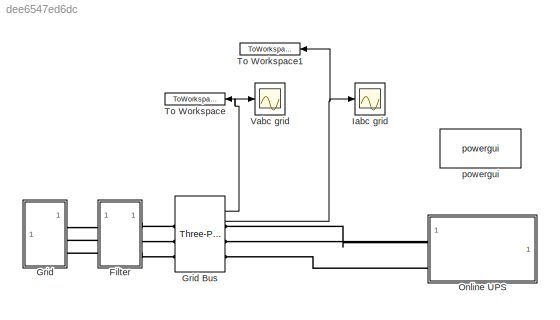
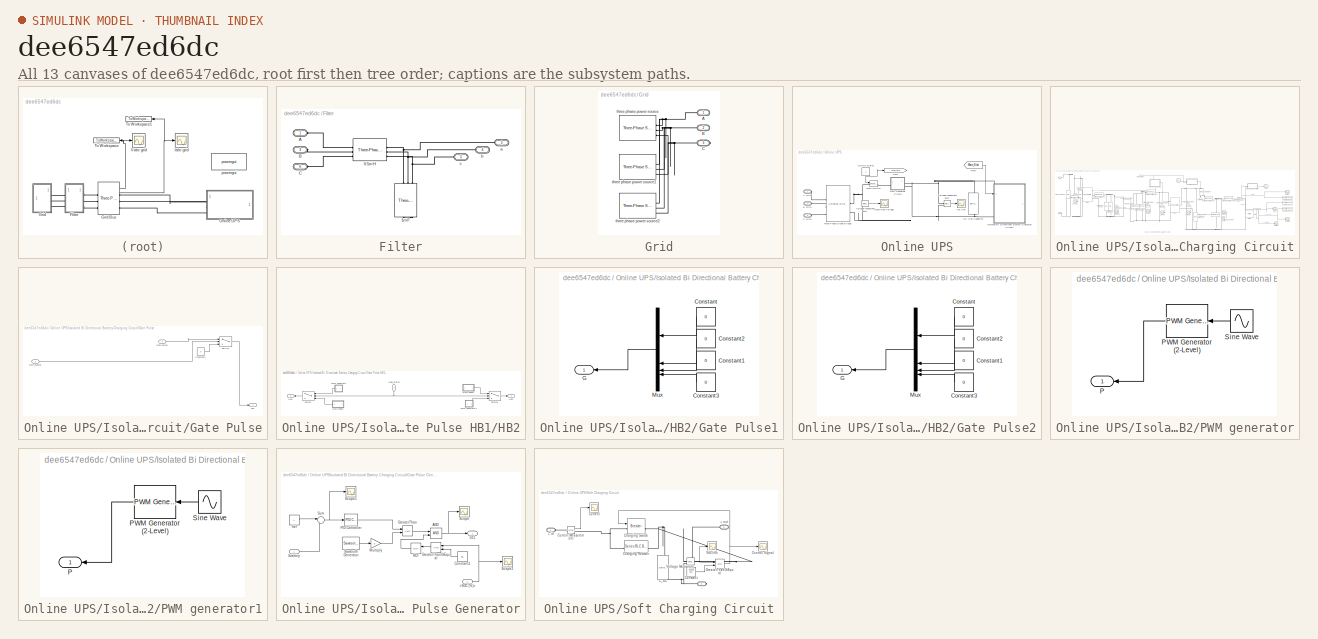
[diagram: thumbnail index - all 13 canvases of the model, root first then tree order]
MODEL slx_dee6547ed6dc
KIND model
CONFIG AbsTol = auto
CONFIG EnableMultiTasking = off
CONFIG FixedStep = auto
CONFIG MaxStep = auto
CONFIG MinStep = auto
CONFIG RelTol = 1e-3
CONFIG SampleTimeConstraint = Unconstrained
CONFIG SolverName = VariableStepAuto
CONFIG StartTime = 0.0
CONFIG StopTime = 60*3
BLOCK [SubSystem] Filter
BLOCK [Reference] Filter/0.5mH  REF=spsThreePhaseSeriesRLCBranchLib/Three-Phase
Series RLC Branch
  AttributesFormatString = \n
  SourceBlock = spsThreePhaseSeriesRLCBranchLib/Three-Phase\nSeries RLC Branch
  SourceType = Three-Phase Series RLC Branch
BLOCK [Reference] Filter/1mF  REF=spsThreePhaseSeriesRLCBranchLib/Three-Phase
Series RLC Branch
  AttributesFormatString = \n
  NameLocation = left
  SourceBlock = spsThreePhaseSeriesRLCBranchLib/Three-Phase\nSeries RLC Branch
  SourceType = Three-Phase Series RLC Branch
BLOCK [PMIOPort] Filter/A
  Side = Left
BLOCK [PMIOPort] Filter/B
  Port = 3
  Side = Left
BLOCK [PMIOPort] Filter/C
  Port = 6
  Side = Left
BLOCK [PMIOPort] Filter/a
  Port = 2
  Side = Right
BLOCK [PMIOPort] Filter/b
  Port = 4
  Side = Right
BLOCK [PMIOPort] Filter/c
  Port = 5
  Side = Right
BLOCK [SubSystem] Grid
BLOCK [Reference] Grid Bus  REF=spsThreePhaseVIMeasurementLib/Three-Phase
V-I Measurement
  LibrarySourceBlock = sps_lib/Sensors and Measurements/Three-Phase\nV-I Measurement
  SourceBlock = spsThreePhaseVIMeasurementLib/Three-Phase\nV-I Measurement
  SourceType = Three-Phase VI Measurement
BLOCK [PMIOPort] Grid/A
  Side = Right
BLOCK [PMIOPort] Grid/B
  Port = 2
  Side = Right
BLOCK [PMIOPort] Grid/C
  Port = 3
  Side = Right
BLOCK [Reference] Grid/three phase power source  REF=spsThreePhaseSourceLib/Three-Phase Source
  SourceBlock = spsThreePhaseSourceLib/Three-Phase Source
  SourceType = Three-Phase Source
BLOCK [Reference] Grid/three phase power source1  REF=spsThreePhaseSourceLib/Three-Phase Source
  SourceBlock = spsThreePhaseSourceLib/Three-Phase Source
  SourceType = Three-Phase Source
BLOCK [Reference] Grid/three phase power source2  REF=spsThreePhaseSourceLib/Three-Phase Source
  SourceBlock = spsThreePhaseSourceLib/Three-Phase Source
  SourceType = Three-Phase Source
BLOCK [Scope] Iabc grid
  Floating = off
  NumInputPorts = 1
  ScopeSpecificationString = Simulink.scopes.TimeScopeBlockCfg('CurrentConfiguration', extmgr.ConfigurationSet(extmgr.Configuration('Core','General UI',true),extmgr.Configuration('Core','Source UI',true),extmgr.Configuration('Sources','WiredSimulink',true,'DataLoggingVariableName','ScopeData1'),extmgr.Configuration('Visuals','Time Domain',true,'SerializedDisplays',{struct('MinYLimReal','-104.25754','MaxYLimReal','104.25524','...<+1619ch>
BLOCK [SubSystem] Online UPS
BLOCK [PMIOPort] Online UPS/A Grid
  Side = Left
BLOCK [PMIOPort] Online UPS/B Grid
  Port = 2
  Side = Left
BLOCK [PMIOPort] Online UPS/C Grid
  Port = 3
  Side = Left
BLOCK [Reference] Online UPS/DC Link Capacitor  REF=spsSeriesRLCBranchLib/Series RLC Branch
  NameLocation = top
  SourceBlock = spsSeriesRLCBranchLib/Series RLC Branch
  SourceType = Series RLC Branch
BLOCK [From] Online UPS/From
  GotoTag = Main_Stat
BLOCK [Goto] Online UPS/Goto
  GotoTag = Main_Stat
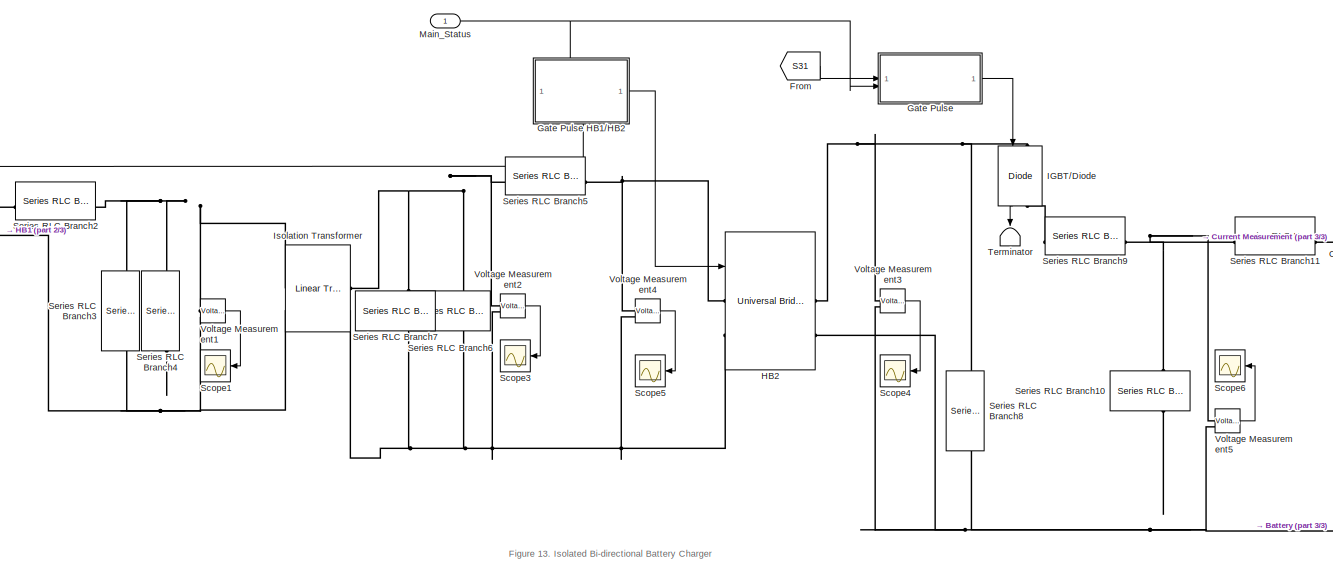
[diagram: Online UPS/Isolated Bi Directional Battery Charging Circuit - part 1/3, center side, full height]
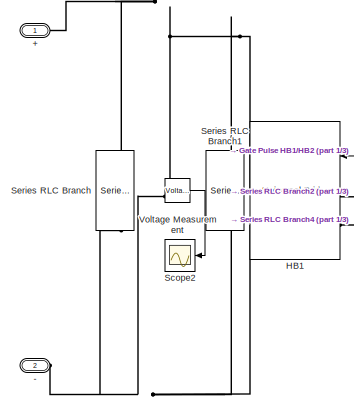
[diagram: Online UPS/Isolated Bi Directional Battery Charging Circuit - part 2/3, middle left region]
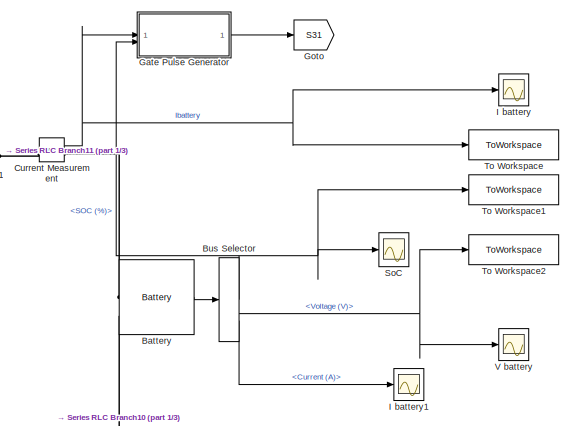
[diagram: Online UPS/Isolated Bi Directional Battery Charging Circuit - part 3/3, middle right region]
BLOCK [SubSystem] Online UPS/Isolated Bi Directional Battery Charging Circuit
BLOCK [PMIOPort] Online UPS/Isolated Bi Directional Battery Charging Circuit/+
  Side = Left
BLOCK [PMIOPort] Online UPS/Isolated Bi Directional Battery Charging Circuit/-
  Port = 2
  Side = Left
BLOCK [Reference] Online UPS/Isolated Bi Directional Battery Charging Circuit/Battery  REF=spsBatteryLib/Battery
  SourceBlock = spsBatteryLib/Battery
  SourceType = Battery
BLOCK [BusSelector] Online UPS/Isolated Bi Directional Battery Charging Circuit/Bus Selector
  OutputSignals = SOC (%),Voltage (V),Current (A)
BLOCK [Reference] Online UPS/Isolated Bi Directional Battery Charging Circuit/Current Measurement  REF=spsCurrentMeasurementLib/Current Measurement
  SourceBlock = spsCurrentMeasurementLib/Current Measurement
  SourceType = Current Measurement
  UserDataPersistent = on
BLOCK [From] Online UPS/Isolated Bi Directional Battery Charging Circuit/From
  GotoTag = S31
BLOCK [SubSystem] Online UPS/Isolated Bi Directional Battery Charging Circuit/Gate Pulse
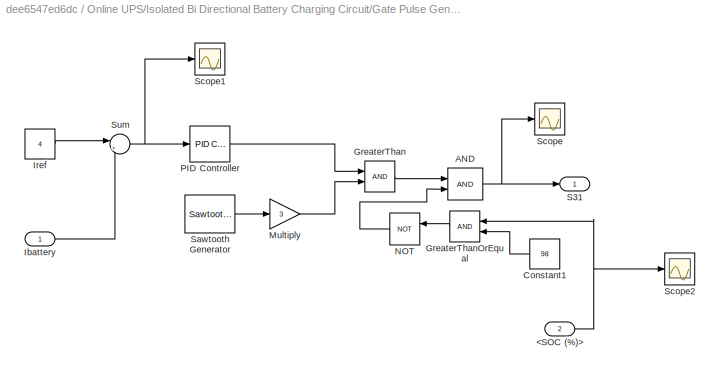
BLOCK [SubSystem] Online UPS/Isolated Bi Directional Battery Charging Circuit/Gate Pulse Generator
BLOCK [Inport] Online UPS/Isolated Bi Directional Battery Charging Circuit/Gate Pulse Generator/<SOC (%)>
  Port = 2
BLOCK [Logic] Online UPS/Isolated Bi Directional Battery Charging Circuit/Gate Pulse Generator/AND
  AllPortsSameDT = off
  IconShape = distinctive
  OutDataTypeStr = boolean
BLOCK [Constant] Online UPS/Isolated Bi Directional Battery Charging Circuit/Gate Pulse Generator/Constant1
  Value = 98
BLOCK [RelationalOperator] Online UPS/Isolated Bi Directional Battery Charging Circuit/Gate Pulse Generator/GreaterThan
  InputSameDT = off
  OutDataTypeStr = boolean
  RndMeth = Simplest
BLOCK [RelationalOperator] Online UPS/Isolated Bi Directional Battery Charging Circuit/Gate Pulse Generator/GreaterThanOrEqual
  InputSameDT = off
  OutDataTypeStr = boolean
  RndMeth = Simplest
BLOCK [Inport] Online UPS/Isolated Bi Directional Battery Charging Circuit/Gate Pulse Generator/Ibattery
BLOCK [Constant] Online UPS/Isolated Bi Directional Battery Charging Circuit/Gate Pulse Generator/Iref
  Value = 4
BLOCK [Gain] Online UPS/Isolated Bi Directional Battery Charging Circuit/Gate Pulse Generator/Multiply
  Gain = 3
BLOCK [Logic] Online UPS/Isolated Bi Directional Battery Charging Circuit/Gate Pulse Generator/NOT
  AllPortsSameDT = off
  IconShape = distinctive
  Operator = NOT
  OutDataTypeStr = boolean
BLOCK [Reference] Online UPS/Isolated Bi Directional Battery Charging Circuit/Gate Pulse Generator/PID Controller  REF=slpidlib/PID Controller
  SourceBlock = slpidlib/PID Controller
  SourceType = PID 1dof
BLOCK [Outport] Online UPS/Isolated Bi Directional Battery Charging Circuit/Gate Pulse Generator/S31
BLOCK [Reference] Online UPS/Isolated Bi Directional Battery Charging Circuit/Gate Pulse Generator/Sawtooth Generator  REF=spsSawtoothGeneratorLib/Sawtooth
Generator
  SourceBlock = spsSawtoothGeneratorLib/Sawtooth\nGenerator
  SourceType = Sawtooth Generator
BLOCK [Scope] Online UPS/Isolated Bi Directional Battery Charging Circuit/Gate Pulse Generator/Scope
  Floating = off
  NumInputPorts = 1
  ScopeSpecificationString = Simulink.scopes.TimeScopeBlockCfg('CurrentConfiguration', extmgr.ConfigurationSet(extmgr.Configuration('Core','General UI',true),extmgr.Configuration('Core','Source UI',true),extmgr.Configuration('Sources','WiredSimulink',true,'DataLoggingVariableName','ScopeData9'),extmgr.Configuration('Visuals','Time Domain',true,'SerializedDisplays',{struct('MinYLimReal','-0.125','MaxYLimReal','1.125','YLabelRe...<+1539ch>
BLOCK [Scope] Online UPS/Isolated Bi Directional Battery Charging Circuit/Gate Pulse Generator/Scope1
  Floating = off
  NumInputPorts = 1
  ScopeSpecificationString = Simulink.scopes.TimeScopeBlockCfg('CurrentConfiguration', extmgr.ConfigurationSet(extmgr.Configuration('Core','General UI',true),extmgr.Configuration('Core','Source UI',true),extmgr.Configuration('Sources','WiredSimulink',true,'DataLoggingVariableName','ScopeData11'),extmgr.Configuration('Visuals','Time Domain',true,'SerializedDisplays',{struct('MinYLimReal','-0.99606','MaxYLimReal','6.87452','YLa...<+1552ch>
BLOCK [Scope] Online UPS/Isolated Bi Directional Battery Charging Circuit/Gate Pulse Generator/Scope2
  Floating = off
  NumInputPorts = 1
  ScopeSpecificationString = Simulink.scopes.TimeScopeBlockCfg('CurrentConfiguration', extmgr.ConfigurationSet(extmgr.Configuration('Core','General UI',true),extmgr.Configuration('Core','Source UI',true),extmgr.Configuration('Sources','WiredSimulink',true,'DataLoggingVariableName','ScopeData12'),extmgr.Configuration('Visuals','Time Domain',true,'SerializedDisplays',{struct('MinYLimReal','26.93694','MaxYLimReal','46.93694','YL...<+1564ch>
BLOCK [Sum] Online UPS/Isolated Bi Directional Battery Charging Circuit/Gate Pulse Generator/Sum
  Inputs = |+-
BLOCK [SubSystem] Online UPS/Isolated Bi Directional Battery Charging Circuit/Gate Pulse HB1//HB2
  PortSchema = {"entries":[{"content":{"sides":[{"content":{"connectorIds":["Out2"]},"type":"ConnectorPlacement.EquallySpacedRectSide","uuid":"1234e2fb-321d-4fcf-8e53-b8d56895d88c"},{"content":{"connectorIds":["Out1"],"side":"RIGHT"},"type":"ConnectorPlacement.EquallySpacedRectSide","uuid":"c3f79607-e652-4b89-92d0-d6f199718302"},{"content":{"connectorIds":["In1"],"side":"TOP"},"type":"ConnectorPlacement.EquallyS...<+246ch>
BLOCK [SubSystem] Online UPS/Isolated Bi Directional Battery Charging Circuit/Gate Pulse HB1//HB2/Gate Pulse1
BLOCK [Constant] Online UPS/Isolated Bi Directional Battery Charging Circuit/Gate Pulse HB1//HB2/Gate Pulse1/Constant
  Value = 0
BLOCK [Constant] Online UPS/Isolated Bi Directional Battery Charging Circuit/Gate Pulse HB1//HB2/Gate Pulse1/Constant1
  Value = 0
BLOCK [Constant] Online UPS/Isolated Bi Directional Battery Charging Circuit/Gate Pulse HB1//HB2/Gate Pulse1/Constant2
  Value = 0
BLOCK [Constant] Online UPS/Isolated Bi Directional Battery Charging Circuit/Gate Pulse HB1//HB2/Gate Pulse1/Constant3
  Value = 0
BLOCK [Outport] Online UPS/Isolated Bi Directional Battery Charging Circuit/Gate Pulse HB1//HB2/Gate Pulse1/G
BLOCK [Mux] Online UPS/Isolated Bi Directional Battery Charging Circuit/Gate Pulse HB1//HB2/Gate Pulse1/Mux
  DisplayOption = bar
BLOCK [SubSystem] Online UPS/Isolated Bi Directional Battery Charging Circuit/Gate Pulse HB1//HB2/Gate Pulse2
BLOCK [Constant] Online UPS/Isolated Bi Directional Battery Charging Circuit/Gate Pulse HB1//HB2/Gate Pulse2/Constant
  Value = 0
BLOCK [Constant] Online UPS/Isolated Bi Directional Battery Charging Circuit/Gate Pulse HB1//HB2/Gate Pulse2/Constant1
  Value = 0
BLOCK [Constant] Online UPS/Isolated Bi Directional Battery Charging Circuit/Gate Pulse HB1//HB2/Gate Pulse2/Constant2
  Value = 0
BLOCK [Constant] Online UPS/Isolated Bi Directional Battery Charging Circuit/Gate Pulse HB1//HB2/Gate Pulse2/Constant3
  Value = 0
BLOCK [Outport] Online UPS/Isolated Bi Directional Battery Charging Circuit/Gate Pulse HB1//HB2/Gate Pulse2/G
BLOCK [Mux] Online UPS/Isolated Bi Directional Battery Charging Circuit/Gate Pulse HB1//HB2/Gate Pulse2/Mux
  DisplayOption = bar
BLOCK [Outport] Online UPS/Isolated Bi Directional Battery Charging Circuit/Gate Pulse HB1//HB2/HB1
  Port = 2
BLOCK [Outport] Online UPS/Isolated Bi Directional Battery Charging Circuit/Gate Pulse HB1//HB2/HB2
BLOCK [Inport] Online UPS/Isolated Bi Directional Battery Charging Circuit/Gate Pulse HB1//HB2/Main_Status
  NameLocation = right
BLOCK [SubSystem] Online UPS/Isolated Bi Directional Battery Charging Circuit/Gate Pulse HB1//HB2/PWM generator
  PortSchema = {"entries":[{"content":{"sides":[{"content":{"connectorIds":["Out1"]},"type":"ConnectorPlacement.EquallySpacedRectSide","uuid":"807d608c-be67-4f89-a244-8e5044f7f1fa"},{"content":{"side":"RIGHT"},"type":"ConnectorPlacement.EquallySpacedRectSide","uuid":"ae9c9264-81d1-4b5c-861e-635da60d63e0"},{"content":{"side":"TOP"},"type":"ConnectorPlacement.EquallySpacedRectSide","uuid":"146f21cb-b82e-455a-b0a2-...<+199ch>
BLOCK [Outport] Online UPS/Isolated Bi Directional Battery Charging Circuit/Gate Pulse HB1//HB2/PWM generator/P
BLOCK [Reference] Online UPS/Isolated Bi Directional Battery Charging Circuit/Gate Pulse HB1//HB2/PWM generator/PWM Generator (2-Level)  REF=spsPWMGenerator2LevelLib/PWM Generator
(2-Level)
  SourceBlock = spsPWMGenerator2LevelLib/PWM Generator\n(2-Level)
  SourceType = PWM Generator (2-Level)
BLOCK [Sin] Online UPS/Isolated Bi Directional Battery Charging Circuit/Gate Pulse HB1//HB2/PWM generator/Sine Wave
  Frequency = 2*pi*50
  SampleTime = 0
BLOCK [SubSystem] Online UPS/Isolated Bi Directional Battery Charging Circuit/Gate Pulse HB1//HB2/PWM generator1
  PortSchema = {"entries":[{"content":{"sides":[{"content":{"connectorIds":["Out1"]},"type":"ConnectorPlacement.EquallySpacedRectSide","uuid":"807d608c-be67-4f89-a244-8e5044f7f1fa"},{"content":{"side":"RIGHT"},"type":"ConnectorPlacement.EquallySpacedRectSide","uuid":"ae9c9264-81d1-4b5c-861e-635da60d63e0"},{"content":{"side":"TOP"},"type":"ConnectorPlacement.EquallySpacedRectSide","uuid":"146f21cb-b82e-455a-b0a2-...<+199ch>
BLOCK [Outport] Online UPS/Isolated Bi Directional Battery Charging Circuit/Gate Pulse HB1//HB2/PWM generator1/P
BLOCK [Reference] Online UPS/Isolated Bi Directional Battery Charging Circuit/Gate Pulse HB1//HB2/PWM generator1/PWM Generator (2-Level)  REF=spsPWMGenerator2LevelLib/PWM Generator
(2-Level)
  SourceBlock = spsPWMGenerator2LevelLib/PWM Generator\n(2-Level)
  SourceType = PWM Generator (2-Level)
BLOCK [Sin] Online UPS/Isolated Bi Directional Battery Charging Circuit/Gate Pulse HB1//HB2/PWM generator1/Sine Wave
  Frequency = 2*pi*50
  SampleTime = 0
BLOCK [Switch] Online UPS/Isolated Bi Directional Battery Charging Circuit/Gate Pulse HB1//HB2/Switch
  Criteria = u2 > Threshold
  InputSameDT = off
  SaturateOnIntegerOverflow = off
BLOCK [Switch] Online UPS/Isolated Bi Directional Battery Charging Circuit/Gate Pulse HB1//HB2/Switch1
  Criteria = u2 > Threshold
  InputSameDT = off
  SaturateOnIntegerOverflow = off
BLOCK [Constant] Online UPS/Isolated Bi Directional Battery Charging Circuit/Gate Pulse/Constant2
  Value = 0
BLOCK [Inport] Online UPS/Isolated Bi Directional Battery Charging Circuit/Gate Pulse/Gate Pulse
BLOCK [Inport] Online UPS/Isolated Bi Directional Battery Charging Circuit/Gate Pulse/Main_Status
  Port = 2
BLOCK [Outport] Online UPS/Isolated Bi Directional Battery Charging Circuit/Gate Pulse/S31
BLOCK [Switch] Online UPS/Isolated Bi Directional Battery Charging Circuit/Gate Pulse/Switch
  Criteria = u2 > Threshold
  InputSameDT = off
  SaturateOnIntegerOverflow = off
BLOCK [Goto] Online UPS/Isolated Bi Directional Battery Charging Circuit/Goto
  GotoTag = S31
BLOCK [Reference] Online UPS/Isolated Bi Directional Battery Charging Circuit/HB1  REF=spsUniversalBridgeLib/Universal Bridge
  SourceBlock = spsUniversalBridgeLib/Universal Bridge
  SourceType = Universal Bridge
BLOCK [Reference] Online UPS/Isolated Bi Directional Battery Charging Circuit/HB2  REF=spsUniversalBridgeLib/Universal Bridge
  SourceBlock = spsUniversalBridgeLib/Universal Bridge
  SourceType = Universal Bridge
BLOCK [Scope] Online UPS/Isolated Bi Directional Battery Charging Circuit/I battery
  Floating = off
  NumInputPorts = 1
  ScopeSpecificationString = Simulink.scopes.TimeScopeBlockCfg('CurrentConfiguration', extmgr.ConfigurationSet(extmgr.Configuration('Core','General UI',true),extmgr.Configuration('Core','Source UI',true),extmgr.Configuration('Sources','WiredSimulink',true,'DataLoggingVariableName','ScopeData7'),extmgr.Configuration('Visuals','Time Domain',true,'SerializedDisplays',{struct('MinYLimReal','-7.96991','MaxYLimReal','3.3106','YLabe...<+1554ch>
BLOCK [Scope] Online UPS/Isolated Bi Directional Battery Charging Circuit/I battery1
  Floating = off
  NumInputPorts = 1
  ScopeSpecificationString = Simulink.scopes.TimeScopeBlockCfg('CurrentConfiguration', extmgr.ConfigurationSet(extmgr.Configuration('Core','General UI',true),extmgr.Configuration('Core','Source UI',true),extmgr.Configuration('Sources','WiredSimulink',true,'DataLoggingVariableName','ScopeData13'),extmgr.Configuration('Visuals','Time Domain',true,'SerializedDisplays',{struct('MinYLimReal','-3.28611','MaxYLimReal','7.96719','YLa...<+1562ch>
BLOCK [Reference] Online UPS/Isolated Bi Directional Battery Charging Circuit/IGBT//Diode  REF=spsIGBTDiodeLib/IGBT//Diode
  NameLocation = left
  SourceBlock = spsIGBTDiodeLib/IGBT//Diode
  SourceType = IGBT/Diode
BLOCK [Reference] Online UPS/Isolated Bi Directional Battery Charging Circuit/Isolation Transformer  REF=spsLinearTransformerLib/Linear Transformer
  SourceBlock = spsLinearTransformerLib/Linear Transformer
  SourceType = Linear Transformer
BLOCK [Inport] Online UPS/Isolated Bi Directional Battery Charging Circuit/Main_Status
BLOCK [Scope] Online UPS/Isolated Bi Directional Battery Charging Circuit/Scope1
  Floating = off
  NameLocation = top
  NumInputPorts = 1
  ScopeSpecificationString = Simulink.scopes.TimeScopeBlockCfg('CurrentConfiguration', extmgr.ConfigurationSet(extmgr.Configuration('Core','General UI',true),extmgr.Configuration('Core','Source UI',true),extmgr.Configuration('Sources','WiredSimulink',true,'DataLoggingVariableName','ScopeData1'),extmgr.Configuration('Visuals','Time Domain',true,'SerializedDisplays',{struct('MinYLimReal','-3.54149','MaxYLimReal','3.53975','YLab...<+1568ch>
BLOCK [Scope] Online UPS/Isolated Bi Directional Battery Charging Circuit/Scope2
  Floating = off
  NameLocation = top
  NumInputPorts = 1
  ScopeSpecificationString = Simulink.scopes.TimeScopeBlockCfg('CurrentConfiguration', extmgr.ConfigurationSet(extmgr.Configuration('Core','General UI',true),extmgr.Configuration('Core','Source UI',true),extmgr.Configuration('Sources','WiredSimulink',true,'DataLoggingVariableName','ScopeData4'),extmgr.Configuration('Visuals','Time Domain',true,'SerializedDisplays',{struct('MinYLimReal','-0.13812','MaxYLimReal','1.24308','YLab...<+1567ch>
BLOCK [Scope] Online UPS/Isolated Bi Directional Battery Charging Circuit/Scope3
  Floating = off
  NameLocation = top
  NumInputPorts = 1
  ScopeSpecificationString = Simulink.scopes.TimeScopeBlockCfg('CurrentConfiguration', extmgr.ConfigurationSet(extmgr.Configuration('Core','General UI',true),extmgr.Configuration('Core','Source UI',true),extmgr.Configuration('Sources','WiredSimulink',true,'DataLoggingVariableName','ScopeData8'),extmgr.Configuration('Visuals','Time Domain',true,'SerializedDisplays',{struct('MinYLimReal','-44.65067','MaxYLimReal','44.66764','YL...<+1574ch>
BLOCK [Scope] Online UPS/Isolated Bi Directional Battery Charging Circuit/Scope4
  Floating = off
  NameLocation = top
  NumInputPorts = 1
  ScopeSpecificationString = Simulink.scopes.TimeScopeBlockCfg('CurrentConfiguration', extmgr.ConfigurationSet(extmgr.Configuration('Core','General UI',true),extmgr.Configuration('Core','Source UI',true),extmgr.Configuration('Sources','WiredSimulink',true,'DataLoggingVariableName','ScopeData3'),extmgr.Configuration('Visuals','Time Domain',true,'SerializedDisplays',{struct('MinYLimReal','-1.52304','MaxYLimReal','13.70129','YLa...<+1572ch>
BLOCK [Scope] Online UPS/Isolated Bi Directional Battery Charging Circuit/Scope5
  Floating = off
  NameLocation = top
  NumInputPorts = 1
  ScopeSpecificationString = Simulink.scopes.TimeScopeBlockCfg('CurrentConfiguration', extmgr.ConfigurationSet(extmgr.Configuration('Core','General UI',true),extmgr.Configuration('Core','Source UI',true),extmgr.Configuration('Sources','WiredSimulink',true,'DataLoggingVariableName','ScopeData5'),extmgr.Configuration('Visuals','Time Domain',true,'SerializedDisplays',{struct('MinYLimReal','-17.20856','MaxYLimReal','17.2213','YLa...<+1570ch>
BLOCK [Scope] Online UPS/Isolated Bi Directional Battery Charging Circuit/Scope6
  Floating = off
  NameLocation = top
  NumInputPorts = 1
  ScopeSpecificationString = Simulink.scopes.TimeScopeBlockCfg('CurrentConfiguration', extmgr.ConfigurationSet(extmgr.Configuration('Core','General UI',true),extmgr.Configuration('Core','Source UI',true),extmgr.Configuration('Sources','WiredSimulink',true,'DataLoggingVariableName','ScopeData10'),extmgr.Configuration('Visuals','Time Domain',true,'SerializedDisplays',{struct('MinYLimReal','-1.1763','MaxYLimReal','10.58667','YLa...<+1571ch>
BLOCK [Reference] Online UPS/Isolated Bi Directional Battery Charging Circuit/Series RLC Branch  REF=spsSeriesRLCBranchLib/Series RLC Branch
  NameLocation = left
  SourceBlock = spsSeriesRLCBranchLib/Series RLC Branch
  SourceType = Series RLC Branch
BLOCK [Reference] Online UPS/Isolated Bi Directional Battery Charging Circuit/Series RLC Branch1  REF=spsSeriesRLCBranchLib/Series RLC Branch
  NameLocation = left
  SourceBlock = spsSeriesRLCBranchLib/Series RLC Branch
  SourceType = Series RLC Branch
BLOCK [Reference] Online UPS/Isolated Bi Directional Battery Charging Circuit/Series RLC Branch10  REF=spsSeriesRLCBranchLib/Series RLC Branch
  NameLocation = top
  SourceBlock = spsSeriesRLCBranchLib/Series RLC Branch
  SourceType = Series RLC Branch
BLOCK [Reference] Online UPS/Isolated Bi Directional Battery Charging Circuit/Series RLC Branch11  REF=spsSeriesRLCBranchLib/Series RLC Branch
  SourceBlock = spsSeriesRLCBranchLib/Series RLC Branch
  SourceType = Series RLC Branch
BLOCK [Reference] Online UPS/Isolated Bi Directional Battery Charging Circuit/Series RLC Branch2  REF=spsSeriesRLCBranchLib/Series RLC Branch
  SourceBlock = spsSeriesRLCBranchLib/Series RLC Branch
  SourceType = Series RLC Branch
BLOCK [Reference] Online UPS/Isolated Bi Directional Battery Charging Circuit/Series RLC Branch3  REF=spsSeriesRLCBranchLib/Series RLC Branch
  NameLocation = left
  SourceBlock = spsSeriesRLCBranchLib/Series RLC Branch
  SourceType = Series RLC Branch
BLOCK [Reference] Online UPS/Isolated Bi Directional Battery Charging Circuit/Series RLC Branch4  REF=spsSeriesRLCBranchLib/Series RLC Branch
  NameLocation = left
  SourceBlock = spsSeriesRLCBranchLib/Series RLC Branch
  SourceType = Series RLC Branch
BLOCK [Reference] Online UPS/Isolated Bi Directional Battery Charging Circuit/Series RLC Branch5  REF=spsSeriesRLCBranchLib/Series RLC Branch
  SourceBlock = spsSeriesRLCBranchLib/Series RLC Branch
  SourceType = Series RLC Branch
BLOCK [Reference] Online UPS/Isolated Bi Directional Battery Charging Circuit/Series RLC Branch6  REF=spsSeriesRLCBranchLib/Series RLC Branch
  NameLocation = top
  SourceBlock = spsSeriesRLCBranchLib/Series RLC Branch
  SourceType = Series RLC Branch
BLOCK [Reference] Online UPS/Isolated Bi Directional Battery Charging Circuit/Series RLC Branch7  REF=spsSeriesRLCBranchLib/Series RLC Branch
  NameLocation = top
  SourceBlock = spsSeriesRLCBranchLib/Series RLC Branch
  SourceType = Series RLC Branch
BLOCK [Reference] Online UPS/Isolated Bi Directional Battery Charging Circuit/Series RLC Branch8  REF=spsSeriesRLCBranchLib/Series RLC Branch
  NameLocation = left
  SourceBlock = spsSeriesRLCBranchLib/Series RLC Branch
  SourceType = Series RLC Branch
BLOCK [Reference] Online UPS/Isolated Bi Directional Battery Charging Circuit/Series RLC Branch9  REF=spsSeriesRLCBranchLib/Series RLC Branch
  SourceBlock = spsSeriesRLCBranchLib/Series RLC Branch
  SourceType = Series RLC Branch
BLOCK [Scope] Online UPS/Isolated Bi Directional Battery Charging Circuit/SoC
  Floating = off
  NumInputPorts = 1
  ScopeSpecificationString = Simulink.scopes.TimeScopeBlockCfg('CurrentConfiguration', extmgr.ConfigurationSet(extmgr.Configuration('Core','General UI',true),extmgr.Configuration('Core','Source UI',true),extmgr.Configuration('Sources','WiredSimulink',true,'DataLoggingVariableName','ScopeData2'),extmgr.Configuration('Visuals','Time Domain',true,'SerializedDisplays',{struct('MinYLimReal','36.90492','MaxYLimReal','37.22511','YLa...<+1563ch>
BLOCK [Terminator] Online UPS/Isolated Bi Directional Battery Charging Circuit/Terminator
  NameLocation = left
BLOCK [ToWorkspace] Online UPS/Isolated Bi Directional Battery Charging Circuit/To Workspace
  FixptAsFi = on
  MaxDataPoints = inf
  SampleTime = -1
  SaveFormat = Timeseries
  VariableName = I_battery
BLOCK [ToWorkspace] Online UPS/Isolated Bi Directional Battery Charging Circuit/To Workspace1
  FixptAsFi = on
  MaxDataPoints = inf
  SampleTime = -1
  SaveFormat = Timeseries
  VariableName = SOC_battery
BLOCK [ToWorkspace] Online UPS/Isolated Bi Directional Battery Charging Circuit/To Workspace2
  FixptAsFi = on
  MaxDataPoints = inf
  SampleTime = -1
  SaveFormat = Timeseries
  VariableName = V_battery
BLOCK [Scope] Online UPS/Isolated Bi Directional Battery Charging Circuit/V battery
  Floating = off
  NumInputPorts = 1
  ScopeSpecificationString = Simulink.scopes.TimeScopeBlockCfg('CurrentConfiguration', extmgr.ConfigurationSet(extmgr.Configuration('Core','General UI',true),extmgr.Configuration('Core','Source UI',true),extmgr.Configuration('Sources','WiredSimulink',true,'DataLoggingVariableName','ScopeData6'),extmgr.Configuration('Visuals','Time Domain',true,'SerializedDisplays',{struct('MinYLimReal','-1.45235','MaxYLimReal','13.07119','YLa...<+1565ch>
BLOCK [Reference] Online UPS/Isolated Bi Directional Battery Charging Circuit/Voltage Measurement  REF=spsVoltageMeasurementLib/Voltage Measurement
  SourceBlock = spsVoltageMeasurementLib/Voltage Measurement
  SourceType = Voltage Measurement
  UserDataPersistent = on
BLOCK [Reference] Online UPS/Isolated Bi Directional Battery Charging Circuit/Voltage Measurement1  REF=spsVoltageMeasurementLib/Voltage Measurement
  SourceBlock = spsVoltageMeasurementLib/Voltage Measurement
  SourceType = Voltage Measurement
  UserDataPersistent = on
BLOCK [Reference] Online UPS/Isolated Bi Directional Battery Charging Circuit/Voltage Measurement2  REF=spsVoltageMeasurementLib/Voltage Measurement
  SourceBlock = spsVoltageMeasurementLib/Voltage Measurement
  SourceType = Voltage Measurement
  UserDataPersistent = on
BLOCK [Reference] Online UPS/Isolated Bi Directional Battery Charging Circuit/Voltage Measurement3  REF=spsVoltageMeasurementLib/Voltage Measurement
  SourceBlock = spsVoltageMeasurementLib/Voltage Measurement
  SourceType = Voltage Measurement
  UserDataPersistent = on
BLOCK [Reference] Online UPS/Isolated Bi Directional Battery Charging Circuit/Voltage Measurement4  REF=spsVoltageMeasurementLib/Voltage Measurement
  SourceBlock = spsVoltageMeasurementLib/Voltage Measurement
  SourceType = Voltage Measurement
  UserDataPersistent = on
BLOCK [Reference] Online UPS/Isolated Bi Directional Battery Charging Circuit/Voltage Measurement5  REF=spsVoltageMeasurementLib/Voltage Measurement
  SourceBlock = spsVoltageMeasurementLib/Voltage Measurement
  SourceType = Voltage Measurement
  UserDataPersistent = on
BLOCK [Reference] Online UPS/Main Switch  REF=spsBreakerLib/Breaker
  SourceBlock = spsBreakerLib/Breaker
  SourceType = Breaker
BLOCK [Scope] Online UPS/Rectified Voltage 
  Floating = off
  NumInputPorts = 1
  ScopeSpecificationString = Simulink.scopes.TimeScopeBlockCfg('CurrentConfiguration', extmgr.ConfigurationSet(extmgr.Configuration('Core','General UI',true),extmgr.Configuration('Core','Source UI',true),extmgr.Configuration('Sources','WiredSimulink',true,'DataLoggingVariableName','ScopeData3'),extmgr.Configuration('Visuals','Time Domain',true,'SerializedDisplays',{struct('MinYLimReal','-0.000028','MaxYLimReal','0.00007','YLa...<+1572ch>
BLOCK [SubSystem] Online UPS/Soft Charging Circuit
BLOCK [PMIOPort] Online UPS/Soft Charging Circuit/+ in
  Side = Left
BLOCK [PMIOPort] Online UPS/Soft Charging Circuit/+ out
  Port = 2
  Side = Right
BLOCK [PMIOPort] Online UPS/Soft Charging Circuit/-
  Port = 3
  Side = Right
BLOCK [Reference] Online UPS/Soft Charging Circuit/C_DC  REF=spsSeriesRLCBranchLib/Series RLC Branch
  NameLocation = left
  SourceBlock = spsSeriesRLCBranchLib/Series RLC Branch
  SourceType = Series RLC Branch
BLOCK [Reference] Online UPS/Soft Charging Circuit/Charging Resistor  REF=spsSeriesRLCBranchLib/Series RLC Branch
  SourceBlock = spsSeriesRLCBranchLib/Series RLC Branch
  SourceType = Series RLC Branch
BLOCK [Reference] Online UPS/Soft Charging Circuit/Charging Switch  REF=spsBreakerLib/Breaker
  SourceBlock = spsBreakerLib/Breaker
  SourceType = Breaker
BLOCK [Constant] Online UPS/Soft Charging Circuit/Constant
  Value = 450
BLOCK [Scope] Online UPS/Soft Charging Circuit/Control Signal
  Floating = off
  NumInputPorts = 1
  ScopeSpecificationString = Simulink.scopes.TimeScopeBlockCfg('CurrentConfiguration', extmgr.ConfigurationSet(extmgr.Configuration('Core','General UI',true),extmgr.Configuration('Core','Source UI',true),extmgr.Configuration('Sources','WiredSimulink',true,'DataLoggingVariableName','ScopeData5'),extmgr.Configuration('Visuals','Time Domain',true,'SerializedDisplays',{struct('MinYLimReal','-0.125','MaxYLimReal','1.125','YLabelRe...<+1554ch>
BLOCK [Scope] Online UPS/Soft Charging Circuit/Current
  Floating = off
  NumInputPorts = 1
  ScopeSpecificationString = Simulink.scopes.TimeScopeBlockCfg('CurrentConfiguration', extmgr.ConfigurationSet(extmgr.Configuration('Core','General UI',true),extmgr.Configuration('Core','Source UI',true),extmgr.Configuration('Sources','WiredSimulink',true,'DataLoggingVariableName','ScopeData1'),extmgr.Configuration('Visuals','Time Domain',true,'SerializedDisplays',{struct('MinYLimReal','-8.94683','MaxYLimReal','80.57521','YLa...<+1525ch>
BLOCK [Reference] Online UPS/Soft Charging Circuit/Current Measurement  REF=spsCurrentMeasurementLib/Current Measurement
  SourceBlock = spsCurrentMeasurementLib/Current Measurement
  SourceType = Current Measurement
  UserDataPersistent = on
BLOCK [RelationalOperator] Online UPS/Soft Charging Circuit/GreaterThanOrEqual
  InputSameDT = off
  OutDataTypeStr = boolean
  RndMeth = Simplest
BLOCK [Scope] Online UPS/Soft Charging Circuit/Vdc link
  Floating = off
  NumInputPorts = 1
  ScopeSpecificationString = Simulink.scopes.TimeScopeBlockCfg('CurrentConfiguration', extmgr.ConfigurationSet(extmgr.Configuration('Core','General UI',true),extmgr.Configuration('Core','Source UI',true),extmgr.Configuration('Sources','WiredSimulink',true,'DataLoggingVariableName','ScopeData4'),extmgr.Configuration('Visuals','Time Domain',true,'SerializedDisplays',{struct('MinYLimReal','-63.3961','MaxYLimReal','570.56492','YL...<+1575ch>
BLOCK [Reference] Online UPS/Soft Charging Circuit/Voltage Measurement  REF=spsVoltageMeasurementLib/Voltage Measurement
  SourceBlock = spsVoltageMeasurementLib/Voltage Measurement
  SourceType = Voltage Measurement
  UserDataPersistent = on
BLOCK [Constant] Online UPS/Switch Status
  NameLocation = left
BLOCK [Reference] Online UPS/Three Phase Diode Bridge  REF=spsUniversalBridgeLib/Universal Bridge
  SourceBlock = spsUniversalBridgeLib/Universal Bridge
  SourceType = Universal Bridge
BLOCK [Scope] Online UPS/Vdc link
  Floating = off
  NumInputPorts = 1
  ScopeSpecificationString = Simulink.scopes.TimeScopeBlockCfg('CurrentConfiguration', extmgr.ConfigurationSet(extmgr.Configuration('Core','General UI',true),extmgr.Configuration('Core','Source UI',true),extmgr.Configuration('Sources','WiredSimulink',true,'DataLoggingVariableName','ScopeData5'),extmgr.Configuration('Visuals','Time Domain',true,'SerializedDisplays',{struct('MinYLimReal','-68.66307','MaxYLimReal','618.79352','Y...<+1578ch>
BLOCK [Reference] Online UPS/Voltage Measurement1  REF=spsVoltageMeasurementLib/Voltage Measurement
  SourceBlock = spsVoltageMeasurementLib/Voltage Measurement
  SourceType = Voltage Measurement
  UserDataPersistent = on
BLOCK [Reference] Online UPS/Voltage Measurement2  REF=spsVoltageMeasurementLib/Voltage Measurement
  SourceBlock = spsVoltageMeasurementLib/Voltage Measurement
  SourceType = Voltage Measurement
  UserDataPersistent = on
BLOCK [ToWorkspace] To Workspace
  FixptAsFi = on
  MaxDataPoints = inf
  SampleTime = -1
  SaveFormat = Timeseries
  VariableName = V_grid
BLOCK [ToWorkspace] To Workspace1
  FixptAsFi = on
  MaxDataPoints = inf
  SampleTime = -1
  SaveFormat = Timeseries
  VariableName = I_grid
BLOCK [Scope] Vabc grid
  Floating = off
  NumInputPorts = 1
  ScopeSpecificationString = Simulink.scopes.TimeScopeBlockCfg('CurrentConfiguration', extmgr.ConfigurationSet(extmgr.Configuration('Core','General UI',true),extmgr.Configuration('Core','Source UI',true),extmgr.Configuration('Sources','WiredSimulink',true,'DataLoggingVariableName','ScopeData2'),extmgr.Configuration('Visuals','Time Domain',true,'SerializedDisplays',{struct('MinYLimReal','-461.46421','MaxYLimReal','461.44678','...<+1619ch>
BLOCK [Reference] powergui  REF=spspowerguiLib/powergui
  LibrarySourceBlock = sps_lib/powergui
  Priority = 1
  SourceBlock = spspowerguiLib/powergui
  SourceType = PSB option menu block
ANNOTATION Online UPS/Isolated Bi Directional Battery Charging Circuit: Figure 13. Isolated Bi-directional Battery Charger
NET Grid Bus:1 -> To Workspace:1, Vabc grid:1
NET Grid Bus:2 -> Iabc grid:1, To Workspace1:1
LINE Online UPS/From:1 -> Online UPS/Isolated Bi Directional Battery Charging Circuit:1
LINE Online UPS/Isolated Bi Directional Battery Charging Circuit/Battery:1 -> Online UPS/Isolated Bi Directional Battery Charging Circuit/Bus Selector:1
NET Online UPS/Isolated Bi Directional Battery Charging Circuit/Bus Selector:1 -> Online UPS/Isolated Bi Directional Battery Charging Circuit/Gate Pulse Generator:2, Online UPS/Isolated Bi Directional Battery Charging Circuit/SoC:1, Online UPS/Isolated Bi Directional Battery Charging Circuit/To Workspace1:1
NET Online UPS/Isolated Bi Directional Battery Charging Circuit/Bus Selector:2 -> Online UPS/Isolated Bi Directional Battery Charging Circuit/To Workspace2:1, Online UPS/Isolated Bi Directional Battery Charging Circuit/V battery:1
LINE Online UPS/Isolated Bi Directional Battery Charging Circuit/Bus Selector:3 -> Online UPS/Isolated Bi Directional Battery Charging Circuit/I battery1:1
NET Online UPS/Isolated Bi Directional Battery Charging Circuit/Current Measurement:1 -> Online UPS/Isolated Bi Directional Battery Charging Circuit/Gate Pulse Generator:1, Online UPS/Isolated Bi Directional Battery Charging Circuit/I battery:1, Online UPS/Isolated Bi Directional Battery Charging Circuit/To Workspace:1
LINE Online UPS/Isolated Bi Directional Battery Charging Circuit/From:1 -> Online UPS/Isolated Bi Directional Battery Charging Circuit/Gate Pulse:1
NET Online UPS/Isolated Bi Directional Battery Charging Circuit/Gate Pulse Generator/<SOC (%)>:1 -> Online UPS/Isolated Bi Directional Battery Charging Circuit/Gate Pulse Generator/GreaterThanOrEqual:1, Online UPS/Isolated Bi Directional Battery Charging Circuit/Gate Pulse Generator/Scope2:1
NET Online UPS/Isolated Bi Directional Battery Charging Circuit/Gate Pulse Generator/AND:1 -> Online UPS/Isolated Bi Directional Battery Charging Circuit/Gate Pulse Generator/S31:1, Online UPS/Isolated Bi Directional Battery Charging Circuit/Gate Pulse Generator/Scope:1
LINE Online UPS/Isolated Bi Directional Battery Charging Circuit/Gate Pulse Generator/Constant1:1 -> Online UPS/Isolated Bi Directional Battery Charging Circuit/Gate Pulse Generator/GreaterThanOrEqual:2
LINE Online UPS/Isolated Bi Directional Battery Charging Circuit/Gate Pulse Generator/GreaterThan:1 -> Online UPS/Isolated Bi Directional Battery Charging Circuit/Gate Pulse Generator/AND:1
LINE Online UPS/Isolated Bi Directional Battery Charging Circuit/Gate Pulse Generator/GreaterThanOrEqual:1 -> Online UPS/Isolated Bi Directional Battery Charging Circuit/Gate Pulse Generator/NOT:1
LINE Online UPS/Isolated Bi Directional Battery Charging Circuit/Gate Pulse Generator/Ibattery:1 -> Online UPS/Isolated Bi Directional Battery Charging Circuit/Gate Pulse Generator/Sum:2
LINE Online UPS/Isolated Bi Directional Battery Charging Circuit/Gate Pulse Generator/Iref:1 -> Online UPS/Isolated Bi Directional Battery Charging Circuit/Gate Pulse Generator/Sum:1
LINE Online UPS/Isolated Bi Directional Battery Charging Circuit/Gate Pulse Generator/Multiply:1 -> Online UPS/Isolated Bi Directional Battery Charging Circuit/Gate Pulse Generator/GreaterThan:2
LINE Online UPS/Isolated Bi Directional Battery Charging Circuit/Gate Pulse Generator/NOT:1 -> Online UPS/Isolated Bi Directional Battery Charging Circuit/Gate Pulse Generator/AND:2
LINE Online UPS/Isolated Bi Directional Battery Charging Circuit/Gate Pulse Generator/PID Controller:1 -> Online UPS/Isolated Bi Directional Battery Charging Circuit/Gate Pulse Generator/GreaterThan:1
LINE Online UPS/Isolated Bi Directional Battery Charging Circuit/Gate Pulse Generator/Sawtooth Generator:1 -> Online UPS/Isolated Bi Directional Battery Charging Circuit/Gate Pulse Generator/Multiply:1
NET Online UPS/Isolated Bi Directional Battery Charging Circuit/Gate Pulse Generator/Sum:1 -> Online UPS/Isolated Bi Directional Battery Charging Circuit/Gate Pulse Generator/PID Controller:1, Online UPS/Isolated Bi Directional Battery Charging Circuit/Gate Pulse Generator/Scope1:1
LINE Online UPS/Isolated Bi Directional Battery Charging Circuit/Gate Pulse Generator:1 -> Online UPS/Isolated Bi Directional Battery Charging Circuit/Goto:1
LINE Online UPS/Isolated Bi Directional Battery Charging Circuit/Gate Pulse HB1//HB2/Gate Pulse1/Constant1:1 -> Online UPS/Isolated Bi Directional Battery Charging Circuit/Gate Pulse HB1//HB2/Gate Pulse1/Mux:3
LINE Online UPS/Isolated Bi Directional Battery Charging Circuit/Gate Pulse HB1//HB2/Gate Pulse1/Constant2:1 -> Online UPS/Isolated Bi Directional Battery Charging Circuit/Gate Pulse HB1//HB2/Gate Pulse1/Mux:2
LINE Online UPS/Isolated Bi Directional Battery Charging Circuit/Gate Pulse HB1//HB2/Gate Pulse1/Constant3:1 -> Online UPS/Isolated Bi Directional Battery Charging Circuit/Gate Pulse HB1//HB2/Gate Pulse1/Mux:4
LINE Online UPS/Isolated Bi Directional Battery Charging Circuit/Gate Pulse HB1//HB2/Gate Pulse1/Constant:1 -> Online UPS/Isolated Bi Directional Battery Charging Circuit/Gate Pulse HB1//HB2/Gate Pulse1/Mux:1
LINE Online UPS/Isolated Bi Directional Battery Charging Circuit/Gate Pulse HB1//HB2/Gate Pulse1/Mux:1 -> Online UPS/Isolated Bi Directional Battery Charging Circuit/Gate Pulse HB1//HB2/Gate Pulse1/G:1
LINE Online UPS/Isolated Bi Directional Battery Charging Circuit/Gate Pulse HB1//HB2/Gate Pulse1:1 -> Online UPS/Isolated Bi Directional Battery Charging Circuit/Gate Pulse HB1//HB2/Switch:3
LINE Online UPS/Isolated Bi Directional Battery Charging Circuit/Gate Pulse HB1//HB2/Gate Pulse2/Constant1:1 -> Online UPS/Isolated Bi Directional Battery Charging Circuit/Gate Pulse HB1//HB2/Gate Pulse2/Mux:3
LINE Online UPS/Isolated Bi Directional Battery Charging Circuit/Gate Pulse HB1//HB2/Gate Pulse2/Constant2:1 -> Online UPS/Isolated Bi Directional Battery Charging Circuit/Gate Pulse HB1//HB2/Gate Pulse2/Mux:2
LINE Online UPS/Isolated Bi Directional Battery Charging Circuit/Gate Pulse HB1//HB2/Gate Pulse2/Constant3:1 -> Online UPS/Isolated Bi Directional Battery Charging Circuit/Gate Pulse HB1//HB2/Gate Pulse2/Mux:4
LINE Online UPS/Isolated Bi Directional Battery Charging Circuit/Gate Pulse HB1//HB2/Gate Pulse2/Constant:1 -> Online UPS/Isolated Bi Directional Battery Charging Circuit/Gate Pulse HB1//HB2/Gate Pulse2/Mux:1
LINE Online UPS/Isolated Bi Directional Battery Charging Circuit/Gate Pulse HB1//HB2/Gate Pulse2/Mux:1 -> Online UPS/Isolated Bi Directional Battery Charging Circuit/Gate Pulse HB1//HB2/Gate Pulse2/G:1
LINE Online UPS/Isolated Bi Directional Battery Charging Circuit/Gate Pulse HB1//HB2/Gate Pulse2:1 -> Online UPS/Isolated Bi Directional Battery Charging Circuit/Gate Pulse HB1//HB2/Switch1:1
NET Online UPS/Isolated Bi Directional Battery Charging Circuit/Gate Pulse HB1//HB2/Main_Status:1 -> Online UPS/Isolated Bi Directional Battery Charging Circuit/Gate Pulse HB1//HB2/Switch1:2, Online UPS/Isolated Bi Directional Battery Charging Circuit/Gate Pulse HB1//HB2/Switch:2
LINE Online UPS/Isolated Bi Directional Battery Charging Circuit/Gate Pulse HB1//HB2/PWM generator/PWM Generator (2-Level):1 -> Online UPS/Isolated Bi Directional Battery Charging Circuit/Gate Pulse HB1//HB2/PWM generator/P:1
LINE Online UPS/Isolated Bi Directional Battery Charging Circuit/Gate Pulse HB1//HB2/PWM generator/Sine Wave:1 -> Online UPS/Isolated Bi Directional Battery Charging Circuit/Gate Pulse HB1//HB2/PWM generator/PWM Generator (2-Level):1
LINE Online UPS/Isolated Bi Directional Battery Charging Circuit/Gate Pulse HB1//HB2/PWM generator1/PWM Generator (2-Level):1 -> Online UPS/Isolated Bi Directional Battery Charging Circuit/Gate Pulse HB1//HB2/PWM generator1/P:1
LINE Online UPS/Isolated Bi Directional Battery Charging Circuit/Gate Pulse HB1//HB2/PWM generator1/Sine Wave:1 -> Online UPS/Isolated Bi Directional Battery Charging Circuit/Gate Pulse HB1//HB2/PWM generator1/PWM Generator (2-Level):1
LINE Online UPS/Isolated Bi Directional Battery Charging Circuit/Gate Pulse HB1//HB2/PWM generator1:1 -> Online UPS/Isolated Bi Directional Battery Charging Circuit/Gate Pulse HB1//HB2/Switch1:3
LINE Online UPS/Isolated Bi Directional Battery Charging Circuit/Gate Pulse HB1//HB2/PWM generator:1 -> Online UPS/Isolated Bi Directional Battery Charging Circuit/Gate Pulse HB1//HB2/Switch:1
LINE Online UPS/Isolated Bi Directional Battery Charging Circuit/Gate Pulse HB1//HB2/Switch1:1 -> Online UPS/Isolated Bi Directional Battery Charging Circuit/Gate Pulse HB1//HB2/HB2:1
LINE Online UPS/Isolated Bi Directional Battery Charging Circuit/Gate Pulse HB1//HB2/Switch:1 -> Online UPS/Isolated Bi Directional Battery Charging Circuit/Gate Pulse HB1//HB2/HB1:1
LINE Online UPS/Isolated Bi Directional Battery Charging Circuit/Gate Pulse HB1//HB2:1 -> Online UPS/Isolated Bi Directional Battery Charging Circuit/HB2:1
LINE Online UPS/Isolated Bi Directional Battery Charging Circuit/Gate Pulse HB1//HB2:2 -> Online UPS/Isolated Bi Directional Battery Charging Circuit/HB1:1
LINE Online UPS/Isolated Bi Directional Battery Charging Circuit/Gate Pulse/Constant2:1 -> Online UPS/Isolated Bi Directional Battery Charging Circuit/Gate Pulse/Switch:3
LINE Online UPS/Isolated Bi Directional Battery Charging Circuit/Gate Pulse/Gate Pulse:1 -> Online UPS/Isolated Bi Directional Battery Charging Circuit/Gate Pulse/Switch:1
LINE Online UPS/Isolated Bi Directional Battery Charging Circuit/Gate Pulse/Main_Status:1 -> Online UPS/Isolated Bi Directional Battery Charging Circuit/Gate Pulse/Switch:2
LINE Online UPS/Isolated Bi Directional Battery Charging Circuit/Gate Pulse/Switch:1 -> Online UPS/Isolated Bi Directional Battery Charging Circuit/Gate Pulse/S31:1
LINE Online UPS/Isolated Bi Directional Battery Charging Circuit/Gate Pulse:1 -> Online UPS/Isolated Bi Directional Battery Charging Circuit/IGBT//Diode:1
LINE Online UPS/Isolated Bi Directional Battery Charging Circuit/IGBT//Diode:1 -> Online UPS/Isolated Bi Directional Battery Charging Circuit/Terminator:1
NET Online UPS/Isolated Bi Directional Battery Charging Circuit/Main_Status:1 -> Online UPS/Isolated Bi Directional Battery Charging Circuit/Gate Pulse HB1//HB2:1, Online UPS/Isolated Bi Directional Battery Charging Circuit/Gate Pulse:2
LINE Online UPS/Isolated Bi Directional Battery Charging Circuit/Voltage Measurement1:1 -> Online UPS/Isolated Bi Directional Battery Charging Circuit/Scope1:1
LINE Online UPS/Isolated Bi Directional Battery Charging Circuit/Voltage Measurement2:1 -> Online UPS/Isolated Bi Directional Battery Charging Circuit/Scope3:1
LINE Online UPS/Isolated Bi Directional Battery Charging Circuit/Voltage Measurement3:1 -> Online UPS/Isolated Bi Directional Battery Charging Circuit/Scope4:1
LINE Online UPS/Isolated Bi Directional Battery Charging Circuit/Voltage Measurement4:1 -> Online UPS/Isolated Bi Directional Battery Charging Circuit/Scope5:1
LINE Online UPS/Isolated Bi Directional Battery Charging Circuit/Voltage Measurement5:1 -> Online UPS/Isolated Bi Directional Battery Charging Circuit/Scope6:1
LINE Online UPS/Isolated Bi Directional Battery Charging Circuit/Voltage Measurement:1 -> Online UPS/Isolated Bi Directional Battery Charging Circuit/Scope2:1
LINE Online UPS/Soft Charging Circuit/Constant:1 -> Online UPS/Soft Charging Circuit/GreaterThanOrEqual:2
LINE Online UPS/Soft Charging Circuit/Current Measurement:1 -> Online UPS/Soft Charging Circuit/Current:1
NET Online UPS/Soft Charging Circuit/GreaterThanOrEqual:1 -> Online UPS/Soft Charging Circuit/Charging Switch:1, Online UPS/Soft Charging Circuit/Control Signal:1
NET Online UPS/Soft Charging Circuit/Voltage Measurement:1 -> Online UPS/Soft Charging Circuit/GreaterThanOrEqual:1, Online UPS/Soft Charging Circuit/Vdc link:1
NET Online UPS/Switch Status:1 -> Online UPS/Goto:1, Online UPS/Main Switch:1
LINE Online UPS/Voltage Measurement1:1 -> Online UPS/Rectified Voltage :1
LINE Online UPS/Voltage Measurement2:1 -> Online UPS/Vdc link:1
PLINE Filter/0.5mH:LConn1 -- Filter/A:RConn1
PLINE Filter/0.5mH:LConn2 -- Filter/B:RConn1
PLINE Filter/0.5mH:LConn3 -- Filter/C:RConn1
PNET net1: Filter/0.5mH:RConn1 -- Filter/1mF:LConn1 -- Filter/a:RConn1
PNET net2: Filter/0.5mH:RConn2 -- Filter/1mF:LConn2 -- Filter/b:RConn1
PNET net3: Filter/0.5mH:RConn3 -- Filter/1mF:LConn3 -- Filter/c:RConn1
PNET net4: Filter/1mF:RConn1 -- Filter/1mF:RConn2 -- Filter/1mF:RConn3
PLINE Filter:LConn1 -- Grid:RConn1
PLINE Filter:LConn2 -- Grid:RConn2
PLINE Filter:LConn3 -- Grid:RConn3
PLINE Filter:RConn1 -- Grid Bus:LConn1
PLINE Filter:RConn2 -- Grid Bus:LConn2
PLINE Filter:RConn3 -- Grid Bus:LConn3
PLINE Grid Bus:RConn1 -- Online UPS:LConn1
PLINE Grid Bus:RConn2 -- Online UPS:LConn2
PLINE Grid Bus:RConn3 -- Online UPS:LConn3
PNET net5: Grid/A:RConn1 -- Grid/three phase power source1:RConn1 -- Grid/three phase power source2:RConn1 -- Grid/three phase power source:RConn1
PNET net6: Grid/B:RConn1 -- Grid/three phase power source1:RConn2 -- Grid/three phase power source2:RConn2 -- Grid/three phase power source:RConn2
PNET net7: Grid/C:RConn1 -- Grid/three phase power source1:RConn3 -- Grid/three phase power source2:RConn3 -- Grid/three phase power source:RConn3
PLINE Online UPS/A Grid:RConn1 -- Online UPS/Three Phase Diode Bridge:LConn1
PLINE Online UPS/B Grid:RConn1 -- Online UPS/Three Phase Diode Bridge:LConn2
PLINE Online UPS/C Grid:RConn1 -- Online UPS/Three Phase Diode Bridge:LConn3
PNET net8: Online UPS/DC Link Capacitor:LConn1 -- Online UPS/Isolated Bi Directional Battery Charging Circuit:LConn1 -- Online UPS/Soft Charging Circuit:RConn1 -- Online UPS/Voltage Measurement2:LConn1
PNET net9: Online UPS/DC Link Capacitor:RConn1 -- Online UPS/Isolated Bi Directional Battery Charging Circuit:LConn2 -- Online UPS/Soft Charging Circuit:RConn2 -- Online UPS/Three Phase Diode Bridge:RConn2 -- Online UPS/Voltage Measurement1:LConn2 -- Online UPS/Voltage Measurement2:LConn2
PNET net10: Online UPS/Isolated Bi Directional Battery Charging Circuit/+:RConn1 -- Online UPS/Isolated Bi Directional Battery Charging Circuit/HB1:RConn1 -- Online UPS/Isolated Bi Directional Battery Charging Circuit/Series RLC Branch1:LConn1 -- Online UPS/Isolated Bi Directional Battery Charging Circuit/Series RLC Branch:LConn1 -- Online UPS/Isolated Bi Directional Battery Charging Circuit/Voltage Measurement:LConn1
PNET net11: Online UPS/Isolated Bi Directional Battery Charging Circuit/-:RConn1 -- Online UPS/Isolated Bi Directional Battery Charging Circuit/HB1:RConn2 -- Online UPS/Isolated Bi Directional Battery Charging Circuit/Series RLC Branch1:RConn1 -- Online UPS/Isolated Bi Directional Battery Charging Circuit/Series RLC Branch:RConn1 -- Online UPS/Isolated Bi Directional Battery Charging Circuit/Voltage Measurement:LConn2
PLINE Online UPS/Isolated Bi Directional Battery Charging Circuit/Battery:LConn1 -- Online UPS/Isolated Bi Directional Battery Charging Circuit/Current Measurement:RConn1
PNET net12: Online UPS/Isolated Bi Directional Battery Charging Circuit/Battery:LConn2 -- Online UPS/Isolated Bi Directional Battery Charging Circuit/HB2:RConn2 -- Online UPS/Isolated Bi Directional Battery Charging Circuit/Series RLC Branch10:RConn1 -- Online UPS/Isolated Bi Directional Battery Charging Circuit/Series RLC Branch8:RConn1 -- Online UPS/Isolated Bi Directional Battery Charging Circuit/Voltage Measurement3:LConn2 -- Online UPS/Isolated Bi Directional Battery Charging Circuit/Voltage Measurement5:LConn2
PLINE Online UPS/Isolated Bi Directional Battery Charging Circuit/Current Measurement:LConn1 -- Online UPS/Isolated Bi Directional Battery Charging Circuit/Series RLC Branch11:LConn1
PLINE Online UPS/Isolated Bi Directional Battery Charging Circuit/HB1:LConn1 -- Online UPS/Isolated Bi Directional Battery Charging Circuit/Series RLC Branch2:LConn1
PNET net13: Online UPS/Isolated Bi Directional Battery Charging Circuit/HB1:LConn2 -- Online UPS/Isolated Bi Directional Battery Charging Circuit/Isolation Transformer:LConn2 -- Online UPS/Isolated Bi Directional Battery Charging Circuit/Series RLC Branch3:RConn1 -- Online UPS/Isolated Bi Directional Battery Charging Circuit/Series RLC Branch4:RConn1 -- Online UPS/Isolated Bi Directional Battery Charging Circuit/Voltage Measurement1:LConn2
PNET net14: Online UPS/Isolated Bi Directional Battery Charging Circuit/HB2:LConn1 -- Online UPS/Isolated Bi Directional Battery Charging Circuit/Series RLC Branch5:LConn1 -- Online UPS/Isolated Bi Directional Battery Charging Circuit/Voltage Measurement4:LConn1
PNET net15: Online UPS/Isolated Bi Directional Battery Charging Circuit/HB2:LConn2 -- Online UPS/Isolated Bi Directional Battery Charging Circuit/Isolation Transformer:RConn2 -- Online UPS/Isolated Bi Directional Battery Charging Circuit/Series RLC Branch6:RConn1 -- Online UPS/Isolated Bi Directional Battery Charging Circuit/Series RLC Branch7:RConn1 -- Online UPS/Isolated Bi Directional Battery Charging Circuit/Voltage Measurement2:LConn2 -- Online UPS/Isolated Bi Directional Battery Charging Circuit/Voltage Measurement4:LConn2
PNET net16: Online UPS/Isolated Bi Directional Battery Charging Circuit/HB2:RConn1 -- Online UPS/Isolated Bi Directional Battery Charging Circuit/IGBT//Diode:LConn1 -- Online UPS/Isolated Bi Directional Battery Charging Circuit/Series RLC Branch8:LConn1 -- Online UPS/Isolated Bi Directional Battery Charging Circuit/Voltage Measurement3:LConn1
PLINE Online UPS/Isolated Bi Directional Battery Charging Circuit/IGBT//Diode:RConn1 -- Online UPS/Isolated Bi Directional Battery Charging Circuit/Series RLC Branch9:RConn1
PNET net17: Online UPS/Isolated Bi Directional Battery Charging Circuit/Isolation Transformer:LConn1 -- Online UPS/Isolated Bi Directional Battery Charging Circuit/Series RLC Branch2:RConn1 -- Online UPS/Isolated Bi Directional Battery Charging Circuit/Series RLC Branch3:LConn1 -- Online UPS/Isolated Bi Directional Battery Charging Circuit/Series RLC Branch4:LConn1 -- Online UPS/Isolated Bi Directional Battery Charging Circuit/Voltage Measurement1:LConn1
PNET net18: Online UPS/Isolated Bi Directional Battery Charging Circuit/Isolation Transformer:RConn1 -- Online UPS/Isolated Bi Directional Battery Charging Circuit/Series RLC Branch5:RConn1 -- Online UPS/Isolated Bi Directional Battery Charging Circuit/Series RLC Branch6:LConn1 -- Online UPS/Isolated Bi Directional Battery Charging Circuit/Series RLC Branch7:LConn1 -- Online UPS/Isolated Bi Directional Battery Charging Circuit/Voltage Measurement2:LConn1
PNET net19: Online UPS/Isolated Bi Directional Battery Charging Circuit/Series RLC Branch10:LConn1 -- Online UPS/Isolated Bi Directional Battery Charging Circuit/Series RLC Branch11:RConn1 -- Online UPS/Isolated Bi Directional Battery Charging Circuit/Series RLC Branch9:LConn1 -- Online UPS/Isolated Bi Directional Battery Charging Circuit/Voltage Measurement5:LConn1
PNET net20: Online UPS/Main Switch:LConn1 -- Online UPS/Three Phase Diode Bridge:RConn1 -- Online UPS/Voltage Measurement1:LConn1
PLINE Online UPS/Main Switch:RConn1 -- Online UPS/Soft Charging Circuit:LConn1
PLINE Online UPS/Soft Charging Circuit/+ in:RConn1 -- Online UPS/Soft Charging Circuit/Current Measurement:LConn1
PNET net21: Online UPS/Soft Charging Circuit/+ out:RConn1 -- Online UPS/Soft Charging Circuit/C_DC:LConn1 -- Online UPS/Soft Charging Circuit/Charging Resistor:RConn1 -- Online UPS/Soft Charging Circuit/Charging Switch:RConn1 -- Online UPS/Soft Charging Circuit/Voltage Measurement:LConn1
PNET net22: Online UPS/Soft Charging Circuit/-:RConn1 -- Online UPS/Soft Charging Circuit/C_DC:RConn1 -- Online UPS/Soft Charging Circuit/Voltage Measurement:LConn2
PNET net23: Online UPS/Soft Charging Circuit/Charging Resistor:LConn1 -- Online UPS/Soft Charging Circuit/Charging Switch:LConn1 -- Online UPS/Soft Charging Circuit/Current Measurement:RConn1
note: NET lines group one-source signal fan-out (src -> all destinations, sorted); 1:1 wires keep LINE; PNET lines group multi-terminal physical nets as a canonical sorted terminal list (undirected conserving connections); 2-terminal nets keep the pairwise PLINE form
